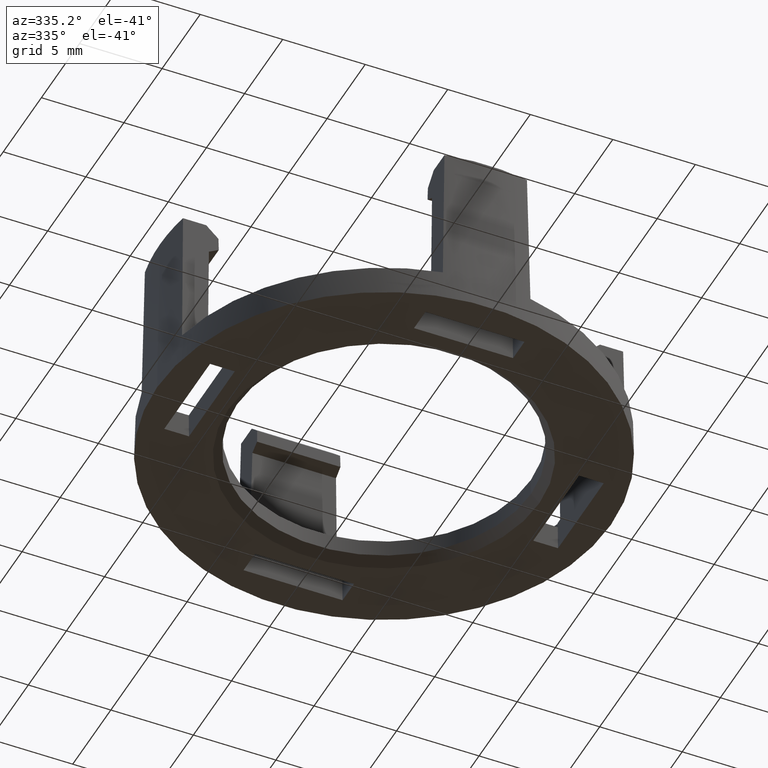
[diagram: clean part render]
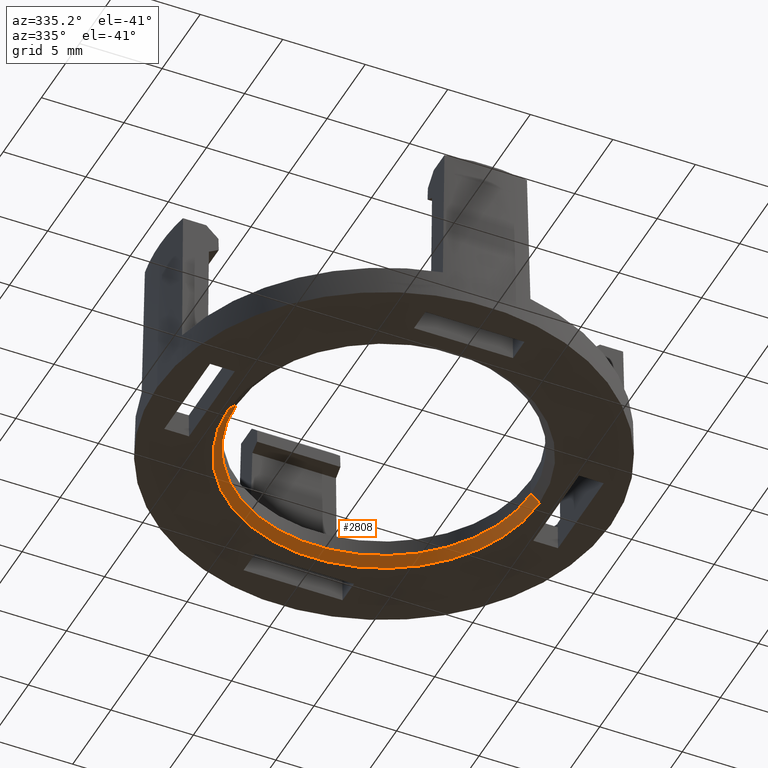
[diagram: same view with one face highlighted and labeled with its STEP entity id]
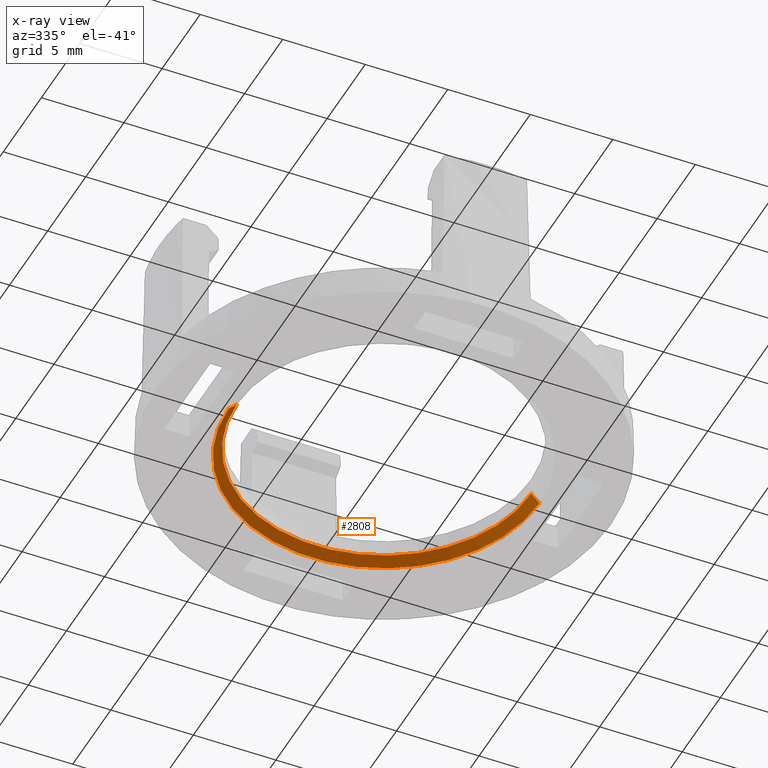
[diagram: x-ray of the same camera — body ghosted, the highlighted face saturated]
A machine part, auxiliary view. The second image highlights one B-rep face of the part: STEP entity #2808.
The next image is the same camera in x-ray: the body ghosted, the highlighted face saturated — about 0% of this face is hidden behind the body in this view.
In plain terms, the highlighted conical surface has half-angle 45 deg.
Its self-contained STEP definition (entity closure, byte-faithful):
#186=DIRECTION('',(7.071067811865E-1,0.E0,-7.071067811866E-1));
#187=VECTOR('',#186,7.071067811865E-1);
#188=CARTESIAN_POINT('',(8.917455064928E0,0.E0,-1.E0));
#189=LINE('',#188,#187);
#201=DIRECTION('',(-7.071067811865E-1,0.E0,-7.071067811866E-1));
#202=VECTOR('',#201,7.071067811865E-1);
#203=CARTESIAN_POINT('',(-8.917455064928E0,0.E0,-1.E0));
#204=LINE('',#203,#202);
#224=CARTESIAN_POINT('',(0.E0,0.E0,-1.5E0));
#225=DIRECTION('',(0.E0,0.E0,1.E0));
#226=DIRECTION('',(1.E0,0.E0,0.E0));
#227=AXIS2_PLACEMENT_3D('',#224,#225,#226);
#1438=CARTESIAN_POINT('',(0.E0,0.E0,-1.E0));
#1439=DIRECTION('',(0.E0,0.E0,1.E0));
#1440=DIRECTION('',(1.E0,0.E0,0.E0));
#1441=AXIS2_PLACEMENT_3D('',#1438,#1439,#1440);
#1458=CARTESIAN_POINT('',(8.917455064928E0,0.E0,-1.E0));
#1459=VERTEX_POINT('',#1458);
#1460=CARTESIAN_POINT('',(-8.917455064928E0,0.E0,-1.E0));
#1461=VERTEX_POINT('',#1460);
#1693=CARTESIAN_POINT('',(9.417455064928E0,0.E0,-1.5E0));
#1694=CARTESIAN_POINT('',(-9.417455064928E0,0.E0,-1.5E0));
#1695=VERTEX_POINT('',#1693);
#1696=VERTEX_POINT('',#1694);
#2797=CARTESIAN_POINT('',(0.E0,0.E0,-1.25E0));
#2798=DIRECTION('',(0.E0,0.E0,-1.E0));
#2799=DIRECTION('',(1.E0,0.E0,0.E0));
#2800=AXIS2_PLACEMENT_3D('',#2797,#2798,#2799);
#2801=CONICAL_SURFACE('',#2800,9.167455064928E0,4.5E1);
#2802=ORIENTED_EDGE('',*,*,#1829,.T.);
#2803=ORIENTED_EDGE('',*,*,#1813,.F.);
#2804=ORIENTED_EDGE('',*,*,#1783,.F.);
#2805=ORIENTED_EDGE('',*,*,#1810,.T.);
#2806=EDGE_LOOP('',(#2802,#2803,#2804,#2805));
#2807=FACE_OUTER_BOUND('',#2806,.F.);
#2808=ADVANCED_FACE('',(#2807),#2801,.F.);
#228=CIRCLE('',#227,9.417455064928E0);
#1442=CIRCLE('',#1441,8.917455064928E0);
#1783=EDGE_CURVE('',#1459,#1461,#1442,.T.);
#1810=EDGE_CURVE('',#1459,#1695,#189,.T.);
#1813=EDGE_CURVE('',#1461,#1696,#204,.T.);
#1829=EDGE_CURVE('',#1695,#1696,#228,.T.);